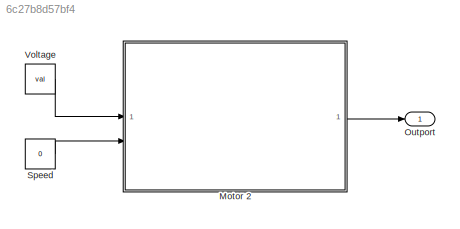
MODEL slx_6c27b8d57bf4
KIND model
CONFIG AbsTol = auto
CONFIG EnableMultiTasking = off
CONFIG FixedStep = auto
CONFIG MaxStep = auto
CONFIG MinStep = auto
CONFIG RelTol = 1e-3
CONFIG SampleTimeConstraint = Unconstrained
CONFIG SolverName = VariableStepAuto
CONFIG StartTime = 0.0
CONFIG StopTime = 10.0
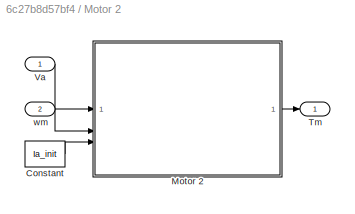
BLOCK [SubSystem] Motor 2
BLOCK [Constant] Motor 2/Constant
  Value = Ia_init
BLOCK [ModelReference] Motor 2/Motor 2
  CopyOfModelProtected = on
  ModelNameDialog = Motor_2
  ModelReferenceVersion = 1.19
BLOCK [Outport] Motor 2/Tm
BLOCK [Inport] Motor 2/Va
BLOCK [Inport] Motor 2/wm
  Port = 2
BLOCK [Outport] Outport
BLOCK [Constant] Speed
  Value = 0
BLOCK [Constant] Voltage
  Value = val
LINE Motor 2/Constant:1 -> Motor 2/Motor 2:3
LINE Motor 2/Motor 2:1 -> Motor 2/Tm:1
LINE Motor 2/Va:1 -> Motor 2/Motor 2:1
LINE Motor 2/wm:1 -> Motor 2/Motor 2:2
LINE Motor 2:1 -> Outport:1
LINE Speed:1 -> Motor 2:2
LINE Voltage:1 -> Motor 2:1
